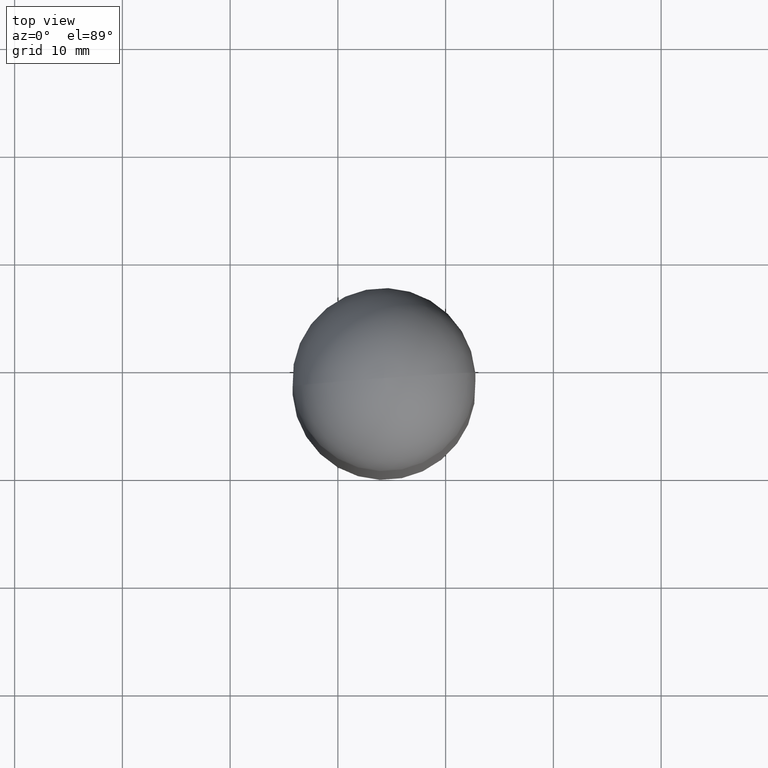
[diagram: clean part render]
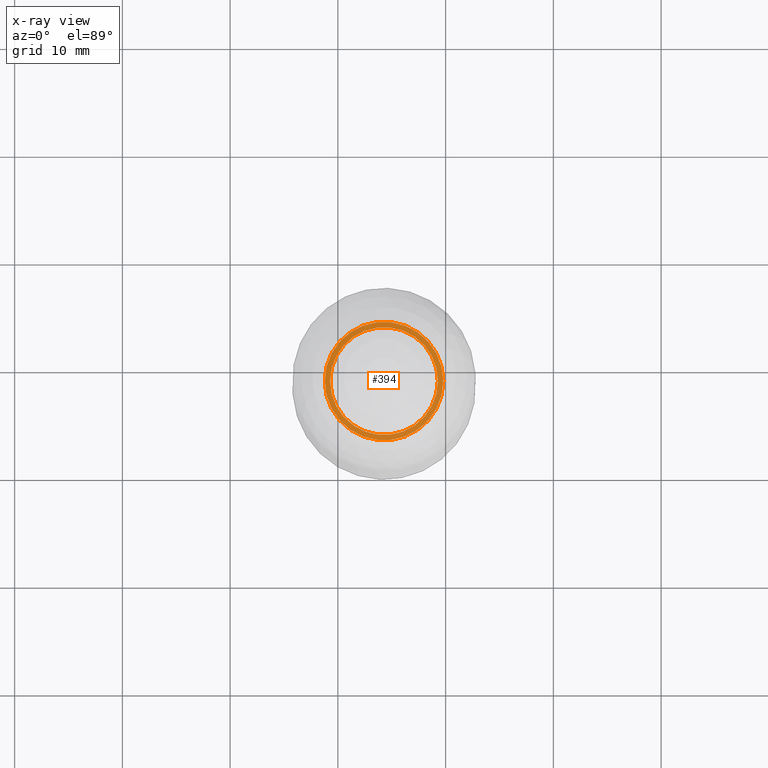
[diagram: x-ray — body ghosted, one internal face saturated and labeled with its STEP entity id]
A machine part, top view, then the same camera in x-ray: the body is ghosted and one INTERNAL B-rep face — a face not visible from any outside direction — is saturated and labeled: STEP entity #394.
In plain terms, the highlighted planar face has unit normal (0, 0, -1).
Its self-contained STEP definition (entity closure, byte-faithful):
#91=CARTESIAN_POINT('',(-0.716946060098080,-1.613904443833871,47.0));
#92=VERTEX_POINT('',#91);
#101=CARTESIAN_POINT('',(9.283053939901919,-1.613904443833871,47.0));
#102=VERTEX_POINT('',#101);
#103=CARTESIAN_POINT('',(4.283053939901920,-1.613904443833871,47.0));
#104=DIRECTION('',(0.0,0.0,1.0));
#105=DIRECTION('',(-1.0,0.0,0.0));
#106=AXIS2_PLACEMENT_3D('',#103,#104,#105);
#107=CIRCLE('',#106,5.0);
#108=EDGE_CURVE('',#92,#102,#107,.T.);
#133=CARTESIAN_POINT('',(-1.216946060098080,-1.613904443833872,47.0));
#134=VERTEX_POINT('',#133);
#143=CARTESIAN_POINT('',(9.783053939901921,-1.613904443833871,47.0));
#144=VERTEX_POINT('',#143);
#145=CARTESIAN_POINT('',(4.283053939901920,-1.613904443833871,47.0));
#146=DIRECTION('',(0.0,0.0,1.0));
#147=DIRECTION('',(-1.0,0.0,0.0));
#148=AXIS2_PLACEMENT_3D('',#145,#146,#147);
#149=CIRCLE('',#148,5.500000000000000);
#150=EDGE_CURVE('',#144,#134,#149,.T.);
#365=CARTESIAN_POINT('',(4.283053939901920,-1.613904443833871,47.0));
#366=DIRECTION('',(0.0,0.0,1.0));
#367=DIRECTION('',(-1.0,0.0,0.0));
#368=AXIS2_PLACEMENT_3D('',#365,#366,#367);
#369=CIRCLE('',#368,5.500000000000000);
#370=EDGE_CURVE('',#134,#144,#369,.T.);
#375=CARTESIAN_POINT('',(4.283053939901920,-1.613904443833871,47.0));
#376=DIRECTION('',(0.0,0.0,-1.0));
#377=DIRECTION('',(-1.0,0.0,0.0));
#378=AXIS2_PLACEMENT_3D('',#375,#376,#377);
#379=PLANE('',#378);
#380=ORIENTED_EDGE('',*,*,#150,.T.);
#381=ORIENTED_EDGE('',*,*,#370,.T.);
#382=EDGE_LOOP('',(#380,#381));
#383=FACE_OUTER_BOUND('',#382,.T.);
#384=CARTESIAN_POINT('',(4.283053939901920,-1.613904443833871,47.0));
#385=DIRECTION('',(0.0,0.0,1.0));
#386=DIRECTION('',(-1.0,0.0,0.0));
#387=AXIS2_PLACEMENT_3D('',#384,#385,#386);
#388=CIRCLE('',#387,5.0);
#389=EDGE_CURVE('',#102,#92,#388,.T.);
#390=ORIENTED_EDGE('',*,*,#389,.F.);
#391=ORIENTED_EDGE('',*,*,#108,.F.);
#392=EDGE_LOOP('',(#390,#391));
#393=FACE_BOUND('',#392,.T.);
#394=ADVANCED_FACE('',(#383,#393),#379,.F.);